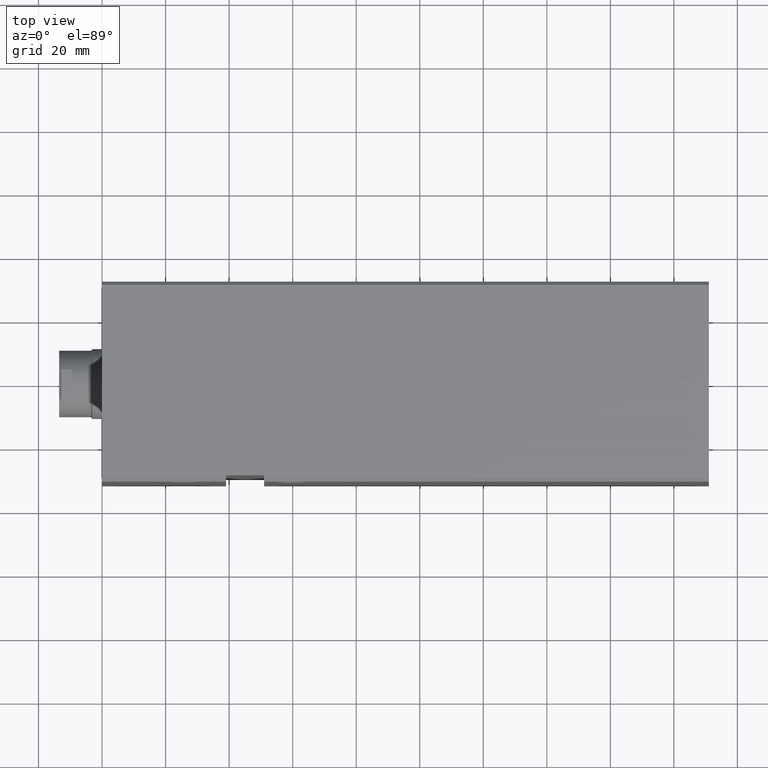
[diagram: clean part render]
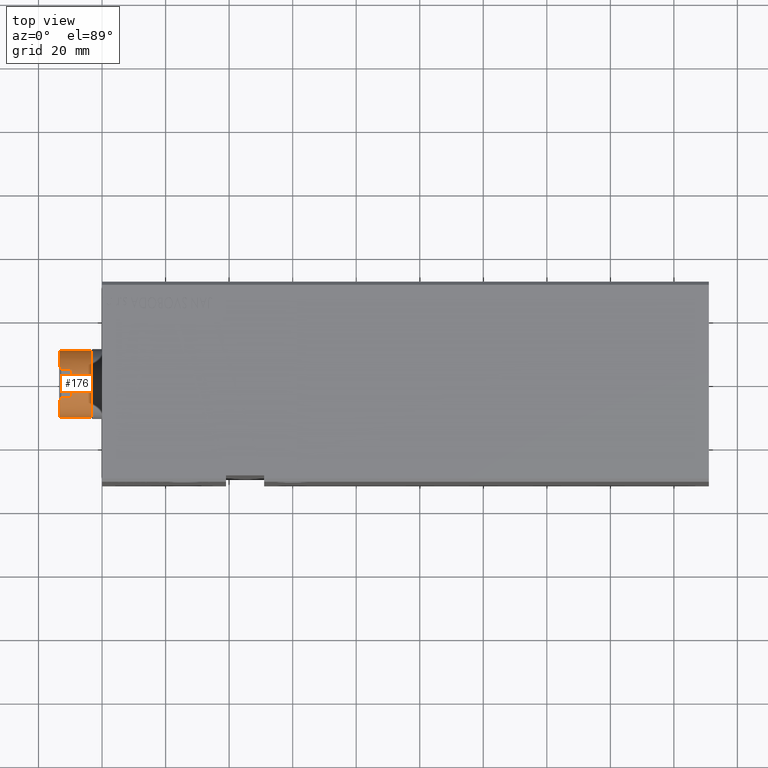
[diagram: same view with one face highlighted and labeled with its STEP entity id]
A machine part, top view. The second image highlights one B-rep face of the part: STEP entity #176.
In plain terms, the highlighted cylindrical surface (edge-blend (fillet) strip) has radius 10.46 mm, axis along (-1, -0, -0).
Its self-contained STEP definition (entity closure, byte-faithful):
#176 = ADVANCED_FACE ( 'NONE', ( #20068 ), #32373, .T. ) ;
#319 = VERTEX_POINT ( 'NONE', #18431 ) ;
#1346 = CARTESIAN_POINT ( 'NONE',  ( 9.500000000000000000, -4.377396486497452166, 167.7900000000000205 ) ) ;
#1587 = AXIS2_PLACEMENT_3D ( 'NONE', #31860, #35477, #7826 ) ;
#1638 = EDGE_CURVE ( 'NONE', #19515, #19559, #39081, .T. ) ;
#1683 = CARTESIAN_POINT ( 'NONE',  ( 0.000000000000000000, -10.46000000000002927, 168.5000000000000000 ) ) ;
#2274 = DIRECTION ( 'NONE',  ( 0.000000000000000000, -1.000000000000000000, 0.000000000000000000 ) ) ;
#2304 = VERTEX_POINT ( 'NONE', #26498 ) ;
#2349 = EDGE_CURVE ( 'NONE', #14869, #37730, #28564, .T. ) ;
#2486 = CARTESIAN_POINT ( 'NONE',  ( 0.000000000000000000, -10.46000000000002927, 168.5000000000000000 ) ) ;
#2894 = DIRECTION ( 'NONE',  ( -0.000000000000000000, -1.805224063316483446E-16, 1.000000000000000000 ) ) ;
#5122 = EDGE_CURVE ( 'NONE', #35837, #37730, #6695, .T. ) ;
#5499 = CARTESIAN_POINT ( 'NONE',  ( 0.000000000000000000, -2.969593584155615304E-14, 164.5000000000000000 ) ) ;
#6404 = VECTOR ( 'NONE', #25897, 1000.000000000000000 ) ;
#6695 = CIRCLE ( 'NONE', #1587, 10.46000000000000085 ) ;
#6982 = CIRCLE ( 'NONE', #12162, 10.45999999999999908 ) ;
#7490 = CARTESIAN_POINT ( 'NONE',  ( 9.293949384395540747, 4.824575729748590724, 167.9960506156045028 ) ) ;
#7591 = CARTESIAN_POINT ( 'NONE',  ( 0.000000000000000000, -2.861280140356626145E-14, 158.5000000000000000 ) ) ;
#7680 = AXIS2_PLACEMENT_3D ( 'NONE', #36251, #17684, #38891 ) ;
#7826 = DIRECTION ( 'NONE',  ( 0.000000000000000000, -1.000000000000000000, 0.000000000000000000 ) ) ;
#7965 = ORIENTED_EDGE ( 'NONE', *, *, #2349, .T. ) ;
#8311 = DIRECTION ( 'NONE',  ( 0.000000000000000000, 1.805224063316483446E-16, -1.000000000000000000 ) ) ;
#10530 = CARTESIAN_POINT ( 'NONE',  ( 8.790000000000011582, 5.669876541865746411, 168.5000000000000000 ) ) ;
#10832 = AXIS2_PLACEMENT_3D ( 'NONE', #7591, #17669, #23158 ) ;
#11383 = CARTESIAN_POINT ( 'NONE',  ( 0.000000000000000000, 10.45999999999997065, 158.5000000000000000 ) ) ;
#12162 = AXIS2_PLACEMENT_3D ( 'NONE', #5499, #14601, #35797 ) ;
#12223 = CARTESIAN_POINT ( 'NONE',  ( 8.790000000000011582, -5.669876541865807695, 168.5000000000000000 ) ) ;
#12951 = ORIENTED_EDGE ( 'NONE', *, *, #29688, .T. ) ;
#12976 = CARTESIAN_POINT ( 'NONE',  ( 9.500000000000000000, 4.377396486497391770, 167.7900000000000205 ) ) ;
#13704 = EDGE_LOOP ( 'NONE', ( #39883, #31218, #31277, #16755, #36780, #12951, #39698, #7965, #14769, #23917 ) ) ;
#14601 = DIRECTION ( 'NONE',  ( -0.000000000000000000, -0.000000000000000000, -1.000000000000000000 ) ) ;
#14769 = ORIENTED_EDGE ( 'NONE', *, *, #5122, .F. ) ;
#14869 = VERTEX_POINT ( 'NONE', #1346 ) ;
#16755 = ORIENTED_EDGE ( 'NONE', *, *, #37401, .T. ) ;
#16798 = EDGE_CURVE ( 'NONE', #38068, #319, #17404, .T. ) ;
#16980 = VECTOR ( 'NONE', #36252, 1000.000000000000000 ) ;
#17404 = LINE ( 'NONE', #26702, #39135 ) ;
#17669 = DIRECTION ( 'NONE',  ( -0.000000000000000000, -1.805224063316483446E-16, 1.000000000000000000 ) ) ;
#17684 = DIRECTION ( 'NONE',  ( -0.000000000000000000, -1.805224063316483446E-16, 1.000000000000000000 ) ) ;
#17799 = CARTESIAN_POINT ( 'NONE',  ( 9.293949384395542523, -4.824575729748648456, 167.9960506156045028 ) ) ;
#18096 = VERTEX_POINT ( 'NONE', #27869 ) ;
#18431 = CARTESIAN_POINT ( 'NONE',  ( 9.500000000000000000, 4.377396486497392658, 164.5000000000000000 ) ) ;
#18851 = CARTESIAN_POINT ( 'NONE',  ( 9.500000000000000000, -4.377396486497452166, 168.5000000000000000 ) ) ;
#19047 = LINE ( 'NONE', #18851, #6404 ) ;
#19515 = VERTEX_POINT ( 'NONE', #11383 ) ;
#19559 = VERTEX_POINT ( 'NONE', #36003 ) ;
#19612 = EDGE_CURVE ( 'NONE', #18096, #35837, #36799, .T. ) ;
#19819 = CARTESIAN_POINT ( 'NONE',  ( 9.500000000000000000, 4.377396486497391770, 167.7900000000000205 ) ) ;
#20068 = FACE_OUTER_BOUND ( 'NONE', #13704, .T. ) ;
#22535 = CIRCLE ( 'NONE', #7680, 10.46000000000000085 ) ;
#22682 =( BOUNDED_CURVE ( )  B_SPLINE_CURVE ( 3, ( #10530, #25677, #7490, #19819 ),
 .UNSPECIFIED., .F., .F. ) 
 B_SPLINE_CURVE_WITH_KNOTS ( ( 4, 4 ),
 ( 2.568714171481421449, 2.709811500076702906 ),
 .UNSPECIFIED. ) 
 CURVE ( )  GEOMETRIC_REPRESENTATION_ITEM ( )  RATIONAL_B_SPLINE_CURVE ( ( 1.000000000000000000, 0.9983416499762385321, 0.9983416499762385321, 1.000000000000000000 ) ) 
 REPRESENTATION_ITEM ( '' )  );
#23158 = DIRECTION ( 'NONE',  ( 0.000000000000000000, -1.000000000000000000, 0.000000000000000000 ) ) ;
#23295 = CARTESIAN_POINT ( 'NONE',  ( 0.000000000000000000, -3.041802546688275165E-14, 168.5000000000000000 ) ) ;
#23917 = ORIENTED_EDGE ( 'NONE', *, *, #19612, .F. ) ;
#24385 = EDGE_CURVE ( 'NONE', #18096, #19515, #25020, .T. ) ;
#25020 = CIRCLE ( 'NONE', #10832, 10.45999999999999908 ) ;
#25677 = CARTESIAN_POINT ( 'NONE',  ( 9.056889589612563185, 5.256118063110160499, 168.2331104103874679 ) ) ;
#25897 = DIRECTION ( 'NONE',  ( -0.000000000000000000, -1.805224063316483446E-16, 1.000000000000000000 ) ) ;
#26498 = CARTESIAN_POINT ( 'NONE',  ( 8.790000000000011582, 5.669876541865746411, 168.5000000000000000 ) ) ;
#26688 = AXIS2_PLACEMENT_3D ( 'NONE', #23295, #35787, #2274 ) ;
#26702 = CARTESIAN_POINT ( 'NONE',  ( 9.500000000000000000, 4.377396486497391770, 168.5000000000000000 ) ) ;
#27487 = CARTESIAN_POINT ( 'NONE',  ( 9.500000000000000000, -4.377396486497452166, 167.7900000000000205 ) ) ;
#27869 = CARTESIAN_POINT ( 'NONE',  ( 1.314046015485110656E-15, -10.46000000000002572, 158.5000000000000000 ) ) ;
#28564 =( BOUNDED_CURVE ( )  B_SPLINE_CURVE ( 3, ( #27487, #17799, #32940, #33537 ),
 .UNSPECIFIED., .F., .F. ) 
 B_SPLINE_CURVE_WITH_KNOTS ( ( 4, 4 ),
 ( 3.573373807102883326, 3.714471135698164783 ),
 .UNSPECIFIED. ) 
 CURVE ( )  GEOMETRIC_REPRESENTATION_ITEM ( )  RATIONAL_B_SPLINE_CURVE ( ( 1.000000000000000000, 0.9983416499762385321, 0.9983416499762385321, 1.000000000000000000 ) ) 
 REPRESENTATION_ITEM ( '' )  );
#29688 = EDGE_CURVE ( 'NONE', #319, #38261, #6982, .T. ) ;
#31218 = ORIENTED_EDGE ( 'NONE', *, *, #1638, .T. ) ;
#31277 = ORIENTED_EDGE ( 'NONE', *, *, #31682, .F. ) ;
#31682 = EDGE_CURVE ( 'NONE', #2304, #19559, #22535, .T. ) ;
#31860 = CARTESIAN_POINT ( 'NONE',  ( 0.000000000000000000, -3.041802546688275165E-14, 168.5000000000000000 ) ) ;
#32373 = CYLINDRICAL_SURFACE ( 'NONE', #26688, 10.45999999999999908 ) ;
#32940 = CARTESIAN_POINT ( 'NONE',  ( 9.056889589612563185, -5.256118063110219119, 168.2331104103874679 ) ) ;
#33272 = EDGE_CURVE ( 'NONE', #38261, #14869, #19047, .T. ) ;
#33537 = CARTESIAN_POINT ( 'NONE',  ( 8.790000000000011582, -5.669876541865807695, 168.5000000000000000 ) ) ;
#35153 = CARTESIAN_POINT ( 'NONE',  ( 9.500000000000000000, -4.377396486497451278, 164.5000000000000000 ) ) ;
#35477 = DIRECTION ( 'NONE',  ( -0.000000000000000000, -1.805224063316483446E-16, 1.000000000000000000 ) ) ;
#35787 = DIRECTION ( 'NONE',  ( -0.000000000000000000, -1.805224063316483446E-16, 1.000000000000000000 ) ) ;
#35797 = DIRECTION ( 'NONE',  ( -1.000000000000000000, 0.000000000000000000, 0.000000000000000000 ) ) ;
#35837 = VERTEX_POINT ( 'NONE', #1683 ) ;
#36003 = CARTESIAN_POINT ( 'NONE',  ( 1.280980551908131330E-15, 10.45999999999996888, 168.5000000000000000 ) ) ;
#36251 = CARTESIAN_POINT ( 'NONE',  ( 0.000000000000000000, -3.041802546688275165E-14, 168.5000000000000000 ) ) ;
#36252 = DIRECTION ( 'NONE',  ( -0.000000000000000000, -1.805224063316483446E-16, 1.000000000000000000 ) ) ;
#36780 = ORIENTED_EDGE ( 'NONE', *, *, #16798, .T. ) ;
#36799 = LINE ( 'NONE', #2486, #39635 ) ;
#37401 = EDGE_CURVE ( 'NONE', #2304, #38068, #22682, .T. ) ;
#37730 = VERTEX_POINT ( 'NONE', #12223 ) ;
#38068 = VERTEX_POINT ( 'NONE', #12976 ) ;
#38261 = VERTEX_POINT ( 'NONE', #35153 ) ;
#38891 = DIRECTION ( 'NONE',  ( 0.000000000000000000, -1.000000000000000000, 0.000000000000000000 ) ) ;
#39081 = LINE ( 'NONE', #39870, #16980 ) ;
#39135 = VECTOR ( 'NONE', #8311, 1000.000000000000000 ) ;
#39635 = VECTOR ( 'NONE', #2894, 1000.000000000000000 ) ;
#39698 = ORIENTED_EDGE ( 'NONE', *, *, #33272, .T. ) ;
#39870 = CARTESIAN_POINT ( 'NONE',  ( 1.280980551908131330E-15, 10.45999999999996710, 168.5000000000000000 ) ) ;
#39883 = ORIENTED_EDGE ( 'NONE', *, *, #24385, .T. ) ;